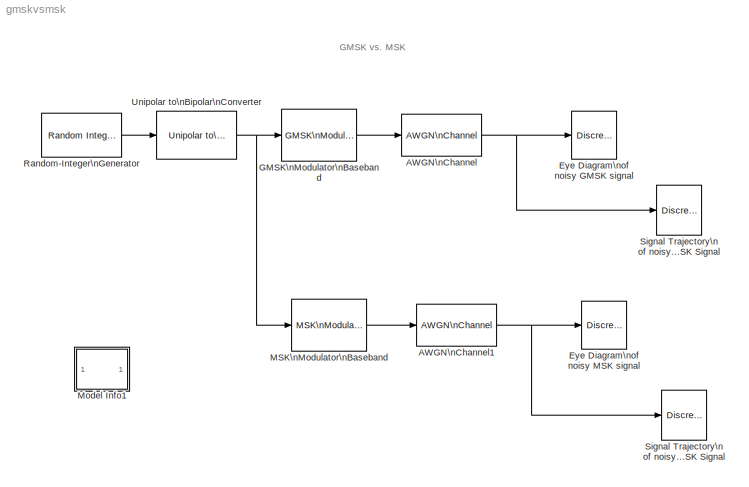
MODEL gmskvsmsk
KIND model
BLOCK [Reference] AWGN\nChannel  REF=commchan2/AWGN\nChannel
  EbNodB = 10
  EsNodB = 10
  Ports = [1, 1]
  Ps = 1
  SNRdB = 30
  ShowPortLabels = on
  SourceBlock = commchan2/AWGN\nChannel
  SourceType = AWGN Channel
  Tsym = 1
  bitsPerSym = 1
  noiseMode = Signal to noise ratio  (SNR)
  seed = 1237
  variance = 1
BLOCK [Reference] AWGN\nChannel1  REF=commchan2/AWGN\nChannel
  EbNodB = 10
  EsNodB = 10
  Ports = [1, 1]
  Ps = 1
  SNRdB = 30
  ShowPortLabels = on
  SourceBlock = commchan2/AWGN\nChannel
  SourceType = AWGN Channel
  Tsym = 1
  bitsPerSym = 1
  noiseMode = Signal to noise ratio  (SNR)
  seed = 1237
  variance = 1
BLOCK [Reference] Eye Diagram\nof noisy GMSK signal  REF=commsink2/Discrete-Time\nEye Diagram\nScope
  AxisGrid = on
  FigPos = [478 366 307 353]
  FrameNumber = off
  LineColors = b
  LineStyles = -
  Ports = [1]
  ShowPortLabels = on
  SourceBlock = commsink2/Discrete-Time\nEye Diagram\nScope
  SourceType = Discrete-Time Eye Diagram Scope
  Tag = EyeDiagram
  block_type_ = eye
  dispDiagram = In-phase and Quadrature
  dupPoints = on
  fading = on
  figTitle = Eye Diagram
  inphaseLabel = In-phase Amplitude
  numLinesMax = 8
  numNewFrames = 10
  numTraces = 40
  offsetEye = 0
  openScopeAtSimStart = on
  quadratureLabel = Quadrature Amplitude
  render = on
  sampPerSymb = 8
  symbPerTrace = 2
  yMax = 1.5
  yMin = -1.5
BLOCK [Reference] Eye Diagram\nof noisy MSK signal  REF=commsink2/Discrete-Time\nEye Diagram\nScope
  AxisGrid = on
  FigPos = [161 365 307 353]
  FrameNumber = off
  LineColors = m
  LineStyles = -
  Ports = [1]
  ShowPortLabels = on
  SourceBlock = commsink2/Discrete-Time\nEye Diagram\nScope
  SourceType = Discrete-Time Eye Diagram Scope
  Tag = EyeDiagram
  block_type_ = eye
  dispDiagram = In-phase and Quadrature
  dupPoints = on
  fading = on
  figTitle = Eye Diagram
  inphaseLabel = In-phase Amplitude
  numLinesMax = 8
  numNewFrames = 10
  numTraces = 40
  offsetEye = 0
  openScopeAtSimStart = on
  quadratureLabel = Quadrature Amplitude
  render = on
  sampPerSymb = 8
  symbPerTrace = 2
  yMax = 1.5
  yMin = -1.5
BLOCK [Reference] GMSK\nModulator\nBaseband  REF=commdigbbndcpm2/GMSK\nModulator\nBaseband
  BT = .3
  Ports = [1, 1]
  ShowPortLabels = on
  SourceBlock = commdigbbndcpm2/GMSK\nModulator\nBaseband
  SourceType = GMSK Modulator Baseband
  inputType = Integer
  phaseOffset = 0
  preHistory = 1
  pulseLength = 3
  samplesPerSymbol = 8
BLOCK [Reference] MSK\nModulator\nBaseband  REF=commdigbbndcpm2/MSK\nModulator\nBaseband
  Ports = [1, 1]
  ShowPortLabels = on
  SourceBlock = commdigbbndcpm2/MSK\nModulator\nBaseband
  SourceType = MSK Modulator Baseband
  inputType = Integer
  phaseOffset = 0
  samplesPerSymbol = 8
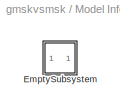
BLOCK [SubSystem] Model Info1
  CopyFcn = slcm CopyBlock;
  DeleteFcn = slcm Cancel;
  EnableExecutionContextPropagation = on
  InitFcn = slcm('UpdateAllCMBlocksInThisModelInit')
  LoadFcn = slcm LoadBlock;
  MaskCallbackString = ||||||||||||||||||||||||||||||
  MaskDescription = This block allows revision control information to be displayed within the model.
  MaskDisplay = text(str2num(LeftAlignmentValue), 0.5, MaskDisplayString, 'HorizontalAlignment', HorizontalTextAlignment)\n
  MaskEnableString = on,on,on,on,on,on,on,on,on,on,on,on,on,on,on,on,on,on,on,on,on,on,on,on,on,on,on,on,on,on,on
  MaskIconFrame = on
  MaskIconOpaque = on
  MaskIconRotate = none
  MaskIconUnits = normalized
  MaskPromptString = InitialSaveTempField|InitialBlockCM|BlockCM|Frame|SaveTempField|DisplayStringWithTags|MaskDisplayString|HorizontalTextAlignment|LeftAlignmentValue|SourceBlockDiagram|TagMaxNumber|CMTag1|CMTag2|CMTag3|CMTag4|CMTag5|CMTag6|CMTag7|CMTag8|CMTag9|CMTag10|CMTag11|CMTag12|CMTag13|CMTag14|CMTag15|CMTag16|CMTag17|CMTag18|CMTag19|CMTag20
  MaskSelfModifiable = on
  MaskStyleString = edit,edit,edit,edit,edit,edit,edit,edit,edit,edit,edit,edit,edit,edit,edit,edit,edit,edit,edit,edit,edit,edit,edit,edit,edit,edit,edit,edit,edit,edit,edit
  MaskTabNameString = ,,,,,,,,,,,,,,,,,,,,,,,,,,,,,,
  MaskToolTipString = on,on,on,on,on,on,on,on,on,on,on,on,on,on,on,on,on,on,on,on,on,on,on,on,on,on,on,on,on,on,on
  MaskTunableValueString = on,on,on,on,on,on,on,on,on,on,on,on,on,on,on,on,on,on,on,on,on,on,on,on,on,on,on,on,on,on,on
  MaskType = CMBlock
  MaskValueString = |None|None|on||Info|Info|Center|0.5|gmskvsmsk|20||||||||||||||||||||
  MaskVarAliasString = ,,,,,,,,,,,,,,,,,,,,,,,,,,,,,,
  MaskVariables = InitialSaveTempField=&1;InitialBlockCM=&2;BlockCM=&3;Frame=&4;SaveTempField=&5;DisplayStringWithTags=&6;MaskDisplayString=&7;HorizontalTextAlignment=&8;LeftAlignmentValue=&9;SourceBlockDiagram=&10;TagMaxNumber=@11;CMTag1=&12;CMTag2=&13;CMTag3=&14;CMTag4=&15;CMTag5=&16;CMTag6=&17;CMTag7=&18;CMTag8=&19;CMTag9=&20;CMTag10=&21;CMTag11=&22;CMTag12=&23;CMTag13=&24;CMTag14=&25;CMTag15=&26;CMTag16=&27;CMT...<+45ch>
  MaskVisibilityString = off,off,off,off,off,off,off,off,off,off,off,off,off,off,off,off,off,off,off,off,off,off,off,off,off,off,off,off,off,off,off
  MinAlgLoopOccurrences = off
  NameChangeFcn = slcm Rename;
  OpenFcn = commdemohelp;
  Ports = []
  PostSaveFcn = slcm('UpdateAllCMBlocksInThisModel')
  TreatAsAtomicUnit = off
BLOCK [SubSystem] Model Info1/EmptySubsystem
  EnableExecutionContextPropagation = on
  MinAlgLoopOccurrences = off
  Ports = []
  TreatAsAtomicUnit = off
BLOCK [Reference] Random-Integer\nGenerator  REF=commrandsrc2/Random Integer\nGenerator
  Ports = [0, 1]
  ShowPortLabels = on
  SourceBlock = commrandsrc2/Random Integer\nGenerator
  SourceType = Random Integer Generator
  Ts = 1
  frameBased = on
  mul = 2
  orient = off
  sampPerFrame = 50
  seed = [12345]
BLOCK [Reference] Signal Trajectory\nof noisy GMSK Signal  REF=commsink2/Discrete-Time\nSignal Trajectory\nScope
  AxisGrid = on
  FigPos = [606 34 338 338]
  FrameNumber = off
  LineColors = b
  LineStyles = -
  Ports = [1]
  ShowPortLabels = on
  SourceBlock = commsink2/Discrete-Time\nSignal Trajectory\nScope
  SourceType = Discrete-Time Signal Trajectory Scope
  Tag = SignalTrajectory
  block_type_ = xy
  fading = on
  figTitle = Signal Trajectory
  inphaseLabel = In-phase Amplitude
  numLinesMax = 8
  numNewFrames = 10
  numTraces = 40
  offsetEye = 0
  openScopeAtSimStart = off
  quadratureLabel = Quadrature Amplitude
  render = on
  sampPerSymb = 8
  xMax = 1.25
  xMin = -1.25
  yMax = 1.25
  yMin = -1.25
BLOCK [Reference] Signal Trajectory\nof noisy MSK Signal  REF=commsink2/Discrete-Time\nSignal Trajectory\nScope
  AxisGrid = on
  FigPos = [257 34 338 338]
  FrameNumber = off
  LineColors = m
  LineStyles = -
  Ports = [1]
  ShowPortLabels = on
  SourceBlock = commsink2/Discrete-Time\nSignal Trajectory\nScope
  SourceType = Discrete-Time Signal Trajectory Scope
  Tag = SignalTrajectory
  block_type_ = xy
  fading = on
  figTitle = Signal Trajectory
  inphaseLabel = In-phase Amplitude
  numLinesMax = 8
  numNewFrames = 10
  numTraces = 40
  offsetEye = 0
  openScopeAtSimStart = off
  quadratureLabel = Quadrature Amplitude
  render = on
  sampPerSymb = 8
  xMax = 1.25
  xMin = -1.25
  yMax = 1.25
  yMin = -1.25
BLOCK [Reference] Unipolar to\nBipolar\nConverter  REF=commutil2/Unipolar to\nBipolar\nConverter
  M = 2
  Ports = [1, 1]
  ShowPortLabels = on
  SourceBlock = commutil2/Unipolar to\nBipolar\nConverter
  SourceType = Unipolar to Bipolar Converter
  polarity = Positive
ANNOTATION (root): GMSK vs. MSK
NET AWGN\nChannel1:1 -> Eye Diagram\nof noisy MSK signal:1, Signal Trajectory\nof noisy MSK Signal:1
NET AWGN\nChannel:1 -> Eye Diagram\nof noisy GMSK signal:1, Signal Trajectory\nof noisy GMSK Signal:1
LINE GMSK\nModulator\nBaseband:1 -> AWGN\nChannel:1
LINE MSK\nModulator\nBaseband:1 -> AWGN\nChannel1:1
LINE Random-Integer\nGenerator:1 -> Unipolar to\nBipolar\nConverter:1
NET Unipolar to\nBipolar\nConverter:1 -> GMSK\nModulator\nBaseband:1, MSK\nModulator\nBaseband:1
note: NET lines group one-source signal fan-out (src -> all destinations, sorted); 1:1 wires keep LINE
